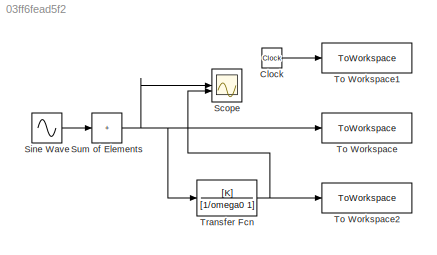
MODEL slx_03ff6fead5f2
KIND model
CONFIG AbsTol = auto
CONFIG EnableMultiTasking = off
CONFIG FixedStep = auto
CONFIG MaxStep = auto
CONFIG MinStep = auto
CONFIG RelTol = 1e-3
CONFIG SampleTimeConstraint = Unconstrained
CONFIG SolverName = VariableStepAuto
CONFIG StartTime = 0.0
CONFIG StopTime = T + Ttrans
BLOCK [Clock] Clock
BLOCK [Scope] Scope
  Floating = off
  NumInputPorts = 2
  ScopeSpecificationString = Simulink.scopes.TimeScopeBlockCfg('CurrentConfiguration', extmgr.ConfigurationSet(extmgr.Configuration('Core','General UI',true),extmgr.Configuration('Core','Source UI',true),extmgr.Configuration('Sources','WiredSimulink',true),extmgr.Configuration('Visuals','Time Domain',true,'SerializedDisplays',{struct('MinYLimReal','-8.64822','MaxYLimReal','10.52287','YLabelReal','','MinYLimMag','0.00000','Max...<+1498ch>
BLOCK [Sin] Sine Wave
  Frequency = (1:N)*2*pi/T
  Phase = 2*pi.*rand(1,N)
  SampleTime = 0
BLOCK [Sum] Sum of Elements
  IconShape = rectangular
  Inputs = +
BLOCK [ToWorkspace] To Workspace
  FixptAsFi = on
  MaxDataPoints = T/Ts
  SampleTime = Ts
  VariableName = u
BLOCK [ToWorkspace] To Workspace1
  FixptAsFi = on
  MaxDataPoints = T/Ts
  SampleTime = Ts
  VariableName = t
BLOCK [ToWorkspace] To Workspace2
  FixptAsFi = on
  MaxDataPoints = T/Ts
  SampleTime = Ts
  VariableName = y
BLOCK [TransferFcn] Transfer Fcn
  Denominator = [1/omega0 1]
  Numerator = [K]
LINE Clock:1 -> To Workspace1:1
LINE Sine Wave:1 -> Sum of Elements:1
NET Sum of Elements:1 -> Scope:1, To Workspace:1, Transfer Fcn:1
NET Transfer Fcn:1 -> Scope:2, To Workspace2:1
note: NET lines group one-source signal fan-out (src -> all destinations, sorted); 1:1 wires keep LINE
